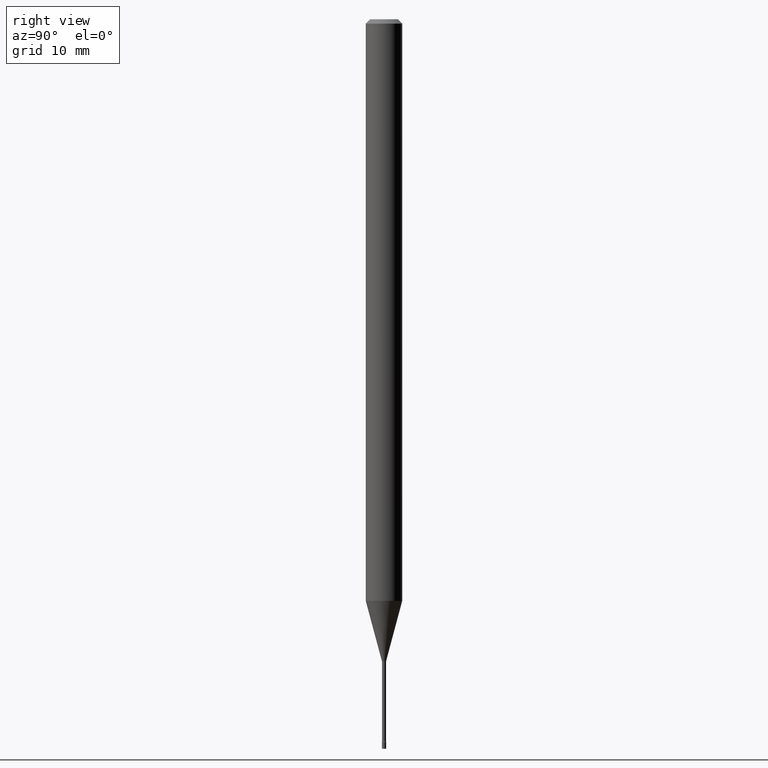
[diagram: clean part render]
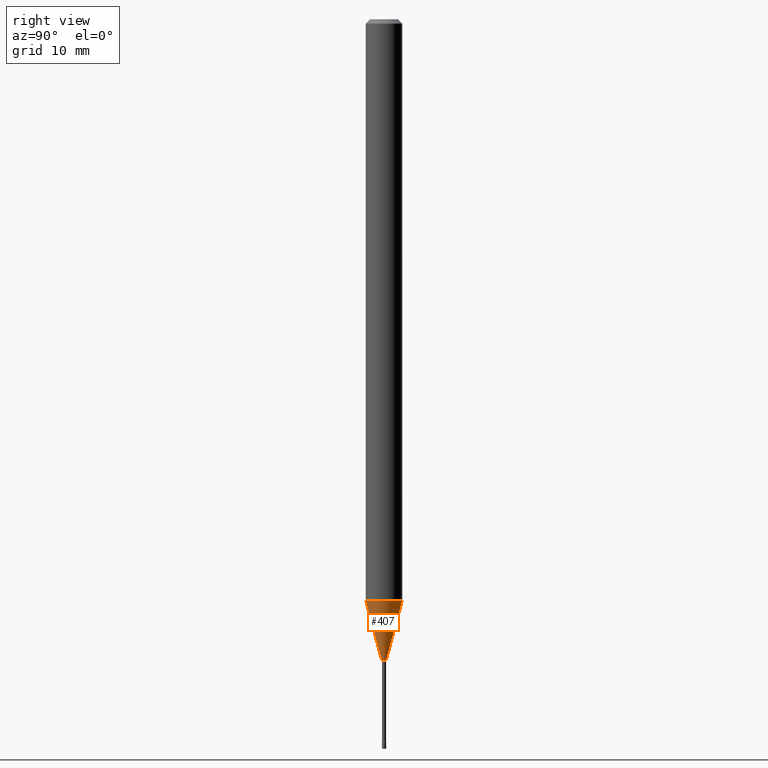
[diagram: same view with one face highlighted and labeled with its STEP entity id]
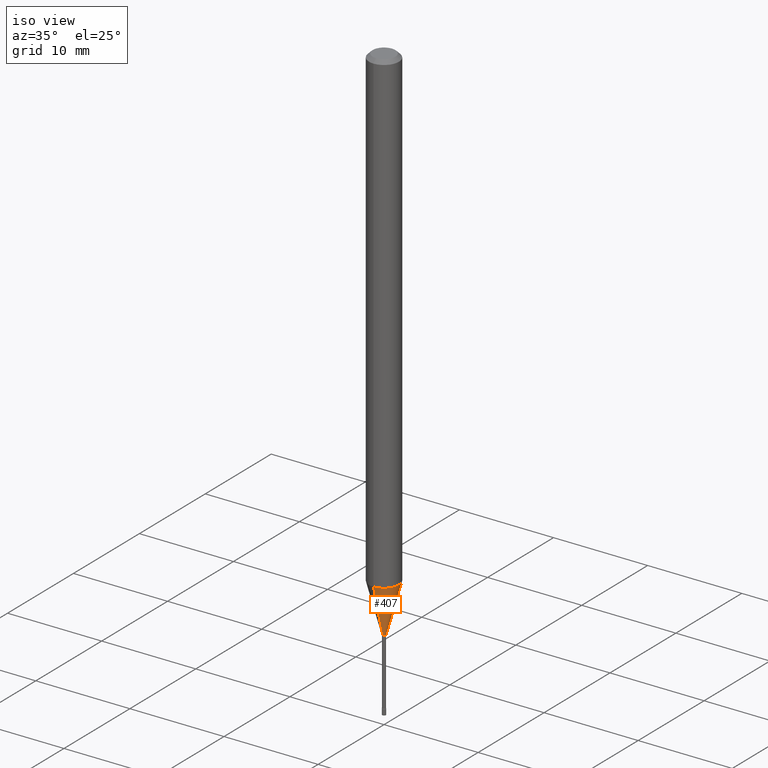
[diagram: same view with one face highlighted and labeled with its STEP entity id]
A machine part, right view. The second image highlights one B-rep face of the part: STEP entity #407.
A second angle (iso view) of the same face is appended — the face is thin or edge-on in the first view.
In plain terms, the highlighted conical surface has half-angle 15 deg.
Its self-contained STEP definition (entity closure, byte-faithful):
#3 = EDGE_LOOP ( 'NONE', ( #38, #379, #512, #483 ) ) ;
#37 = LINE ( 'NONE', #441, #156 ) ;
#38 = ORIENTED_EDGE ( 'NONE', *, *, #430, .T. ) ;
#51 = VECTOR ( 'NONE', #437, 39.37007874015748143 ) ;
#59 = CARTESIAN_POINT ( 'NONE',  ( 2.489070731061760237E-16, 0.007561112605656305531, -2.198092501787273001 ) ) ;
#94 = CARTESIAN_POINT ( 'NONE',  ( 4.440892098501112297E-16, 0.06249999999999304029, -1.993057782720306426 ) ) ;
#103 = AXIS2_PLACEMENT_3D ( 'NONE', #413, #370, #488 ) ;
#111 = VERTEX_POINT ( 'NONE', #124 ) ;
#114 = DIRECTION ( 'NONE',  ( -2.445476508670885484E-29, 3.491470308445154620E-15, 1.000000000000000000 ) ) ;
#124 = CARTESIAN_POINT ( 'NONE',  ( -5.279896712708096815E-17, -0.007561112605671654364, -2.198092501787273001 ) ) ;
#145 = CIRCLE ( 'NONE', #502, 0.007561112605663979948 ) ;
#149 = DIRECTION ( 'NONE',  ( -2.445476508670885484E-29, 3.491470308445154620E-15, 1.000000000000000000 ) ) ;
#156 = VECTOR ( 'NONE', #274, 39.37007874015748854 ) ;
#230 = EDGE_CURVE ( 'NONE', #462, #304, #426, .T. ) ;
#231 = CARTESIAN_POINT ( 'NONE',  ( 5.375383577006393680E-29, -7.674574705206191997E-15, -2.198092501787273001 ) ) ;
#261 = AXIS2_PLACEMENT_3D ( 'NONE', #231, #114, #357 ) ;
#268 = CARTESIAN_POINT ( 'NONE',  ( -5.279896712708096815E-17, -0.007561112605671654364, -2.198092501787273001 ) ) ;
#274 = DIRECTION ( 'NONE',  ( 1.839019923739597160E-15, 0.2588190451025245142, 0.9659258262890670910 ) ) ;
#276 = DIRECTION ( 'NONE',  ( -6.982962677686265133E-15, -1.000000000000000000, 0.000000000000000000 ) ) ;
#298 = CONICAL_SURFACE ( 'NONE', #261, 0.007561112605663979948, 0.2617993877991498519 ) ;
#304 = VERTEX_POINT ( 'NONE', #94 ) ;
#320 = LINE ( 'NONE', #268, #51 ) ;
#357 = DIRECTION ( 'NONE',  ( -6.982962677686265133E-15, -1.000000000000000000, 0.000000000000000000 ) ) ;
#370 = DIRECTION ( 'NONE',  ( -2.445476508670885484E-29, 3.491470308445154620E-15, 1.000000000000000000 ) ) ;
#379 = ORIENTED_EDGE ( 'NONE', *, *, #507, .T. ) ;
#382 = VERTEX_POINT ( 'NONE', #59 ) ;
#404 = EDGE_CURVE ( 'NONE', #111, #462, #320, .T. ) ;
#407 = ADVANCED_FACE ( 'NONE', ( #434 ), #298, .T. ) ;
#413 = CARTESIAN_POINT ( 'NONE',  ( 4.873975988066190610E-29, -6.958702071383483423E-15, -1.993057782720306204 ) ) ;
#426 = CIRCLE ( 'NONE', #103, 0.06250000000000000000 ) ;
#430 = EDGE_CURVE ( 'NONE', #111, #382, #145, .T. ) ;
#434 = FACE_OUTER_BOUND ( 'NONE', #3, .T. ) ;
#437 = DIRECTION ( 'NONE',  ( -1.807323732225327378E-15, -0.2588190451025177974, 0.9659258262890690894 ) ) ;
#441 = CARTESIAN_POINT ( 'NONE',  ( 5.372493636224038015E-17, 0.007561112605656304664, -2.198092501787273001 ) ) ;
#462 = VERTEX_POINT ( 'NONE', #480 ) ;
#480 = CARTESIAN_POINT ( 'NONE',  ( -4.364351673553429079E-16, -0.06250000000000695277, -1.993057782720305759 ) ) ;
#483 = ORIENTED_EDGE ( 'NONE', *, *, #404, .F. ) ;
#488 = DIRECTION ( 'NONE',  ( -6.982962677686265922E-15, -1.000000000000000000, 4.370956789862821150E-15 ) ) ;
#502 = AXIS2_PLACEMENT_3D ( 'NONE', #513, #149, #276 ) ;
#507 = EDGE_CURVE ( 'NONE', #382, #304, #37, .T. ) ;
#512 = ORIENTED_EDGE ( 'NONE', *, *, #230, .F. ) ;
#513 = CARTESIAN_POINT ( 'NONE',  ( 5.375383577006393680E-29, -7.674574705206191997E-15, -2.198092501787273001 ) ) ;